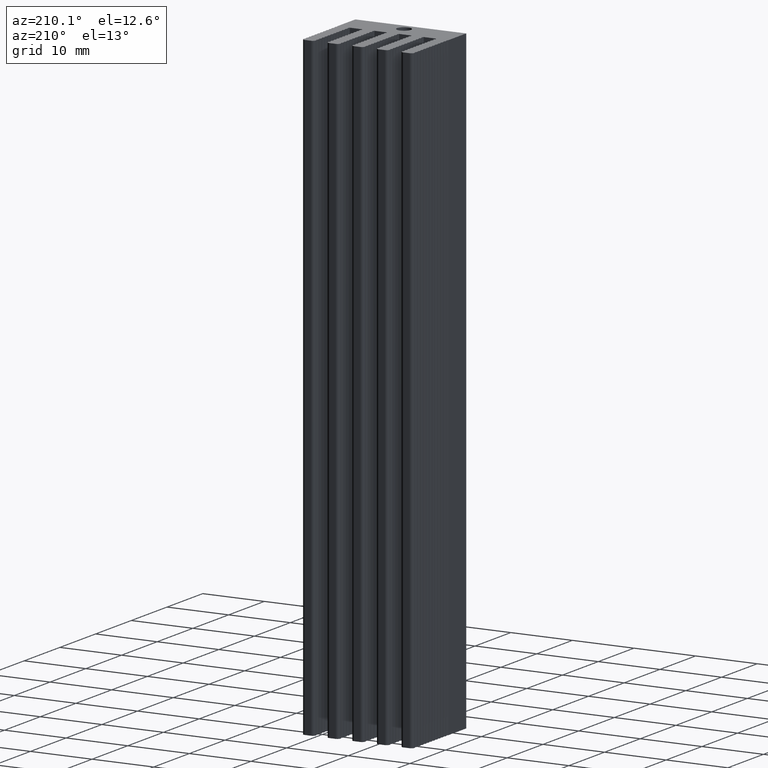
[diagram: clean part render]
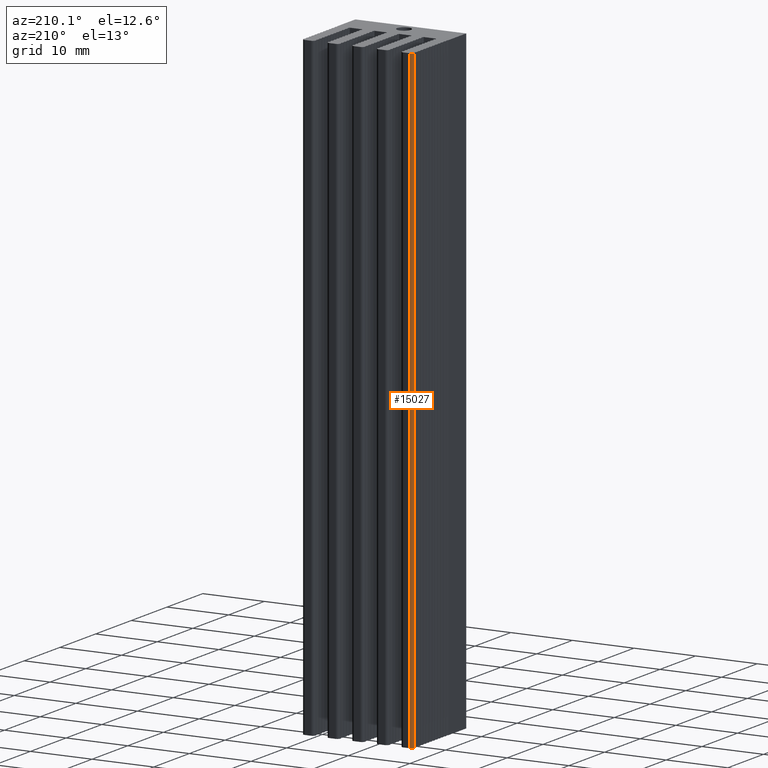
[diagram: same view with one face highlighted and labeled with its STEP entity id]
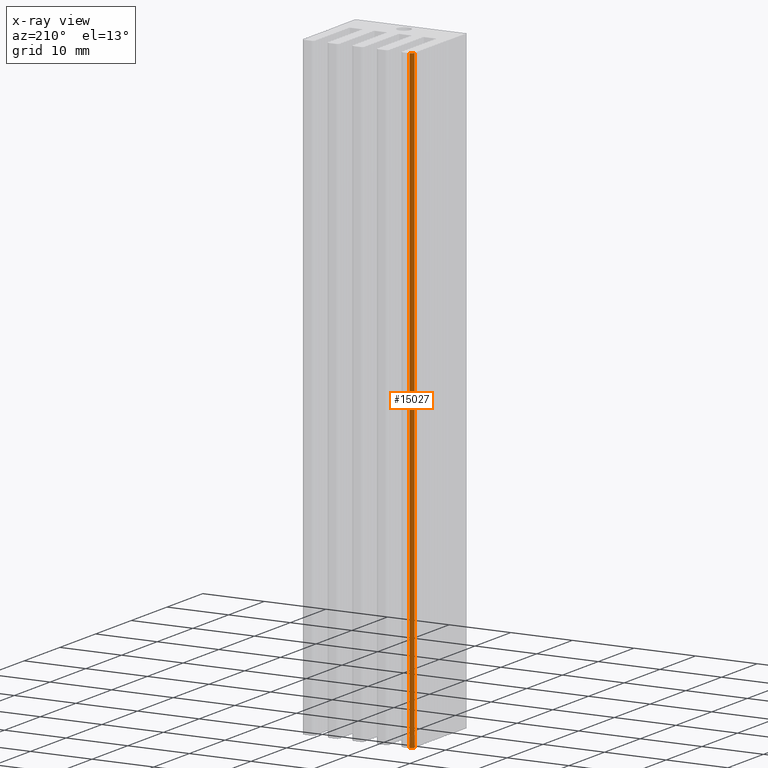
[diagram: x-ray of the same camera — body ghosted, the highlighted face saturated]
A machine part, auxiliary view. The second image highlights one B-rep face of the part: STEP entity #15027.
The next image is the same camera in x-ray: the body ghosted, the highlighted face saturated — about 0% of this face is hidden behind the body in this view.
In plain terms, the highlighted cylindrical surface (edge-blend (fillet) strip) has radius 0.5 mm, axis along (-0, -0, -1).
Its self-contained STEP definition (entity closure, byte-faithful):
#766 = EDGE_CURVE ( 'NONE', #8229, #8437, #4019, .T. ) ;
#938 = DIRECTION ( 'NONE',  ( 1.000000000000000000, 0.0000000000000000000, 0.0000000000000000000 ) ) ;
#1429 = FACE_OUTER_BOUND ( 'NONE', #18283, .T. ) ;
#1619 = AXIS2_PLACEMENT_3D ( 'NONE', #12733, #3568, #14292 ) ;
#2354 = CIRCLE ( 'NONE', #16953, 0.5000000000000004441 ) ;
#2500 = DIRECTION ( 'NONE',  ( -0.0000000000000000000, -0.0000000000000000000, -1.000000000000000000 ) ) ;
#2628 = CARTESIAN_POINT ( 'NONE',  ( -8.500000000000119016, 7.000000000000006217, 50.00000000000000000 ) ) ;
#2885 = ORIENTED_EDGE ( 'NONE', *, *, #10669, .T. ) ;
#3236 = CARTESIAN_POINT ( 'NONE',  ( -8.500000000000119016, 7.500000000000007105, 50.00000000000000000 ) ) ;
#3568 = DIRECTION ( 'NONE',  ( -0.0000000000000000000, 0.0000000000000000000, 1.000000000000000000 ) ) ;
#4019 = LINE ( 'NONE', #15161, #8129 ) ;
#4149 = DIRECTION ( 'NONE',  ( -1.000000000000000000, 0.0000000000000000000, 0.0000000000000000000 ) ) ;
#4290 = CIRCLE ( 'NONE', #1619, 0.5000000000000004441 ) ;
#7113 = VERTEX_POINT ( 'NONE', #9240 ) ;
#8129 = VECTOR ( 'NONE', #8275, 1000.000000000000000 ) ;
#8229 = VERTEX_POINT ( 'NONE', #3236 ) ;
#8275 = DIRECTION ( 'NONE',  ( -0.0000000000000000000, -0.0000000000000000000, -1.000000000000000000 ) ) ;
#8437 = VERTEX_POINT ( 'NONE', #17561 ) ;
#8560 = ORIENTED_EDGE ( 'NONE', *, *, #10876, .F. ) ;
#8806 = ORIENTED_EDGE ( 'NONE', *, *, #15523, .F. ) ;
#9240 = CARTESIAN_POINT ( 'NONE',  ( -9.000000000000119016, 7.000000000000006217, 50.00000000000000000 ) ) ;
#9572 = LINE ( 'NONE', #14749, #12657 ) ;
#9972 = VERTEX_POINT ( 'NONE', #19837 ) ;
#10076 = DIRECTION ( 'NONE',  ( -0.0000000000000000000, 0.0000000000000000000, 1.000000000000000000 ) ) ;
#10669 = EDGE_CURVE ( 'NONE', #8437, #9972, #4290, .T. ) ;
#10876 = EDGE_CURVE ( 'NONE', #7113, #9972, #9572, .T. ) ;
#11760 = DIRECTION ( 'NONE',  ( -0.0000000000000000000, -0.0000000000000000000, -1.000000000000000000 ) ) ;
#12657 = VECTOR ( 'NONE', #2500, 1000.000000000000000 ) ;
#12733 = CARTESIAN_POINT ( 'NONE',  ( -8.500000000000119016, 7.000000000000006217, -50.00000000000000000 ) ) ;
#13264 = ORIENTED_EDGE ( 'NONE', *, *, #766, .T. ) ;
#14292 = DIRECTION ( 'NONE',  ( 1.000000000000000000, 0.0000000000000000000, 0.0000000000000000000 ) ) ;
#14749 = CARTESIAN_POINT ( 'NONE',  ( -9.000000000000119016, 7.000000000000006217, 50.00000000000000000 ) ) ;
#15027 = ADVANCED_FACE ( 'NONE', ( #1429 ), #16758, .T. ) ;
#15161 = CARTESIAN_POINT ( 'NONE',  ( -8.500000000000119016, 7.500000000000007105, 50.00000000000000000 ) ) ;
#15523 = EDGE_CURVE ( 'NONE', #8229, #7113, #2354, .T. ) ;
#16758 = CYLINDRICAL_SURFACE ( 'NONE', #17708, 0.5000000000000004441 ) ;
#16953 = AXIS2_PLACEMENT_3D ( 'NONE', #19285, #10076, #938 ) ;
#17561 = CARTESIAN_POINT ( 'NONE',  ( -8.500000000000119016, 7.500000000000007105, -50.00000000000000000 ) ) ;
#17708 = AXIS2_PLACEMENT_3D ( 'NONE', #2628, #11760, #4149 ) ;
#18283 = EDGE_LOOP ( 'NONE', ( #2885, #8560, #8806, #13264 ) ) ;
#19285 = CARTESIAN_POINT ( 'NONE',  ( -8.500000000000119016, 7.000000000000006217, 50.00000000000000000 ) ) ;
#19837 = CARTESIAN_POINT ( 'NONE',  ( -9.000000000000119016, 7.000000000000006217, -50.00000000000000000 ) ) ;